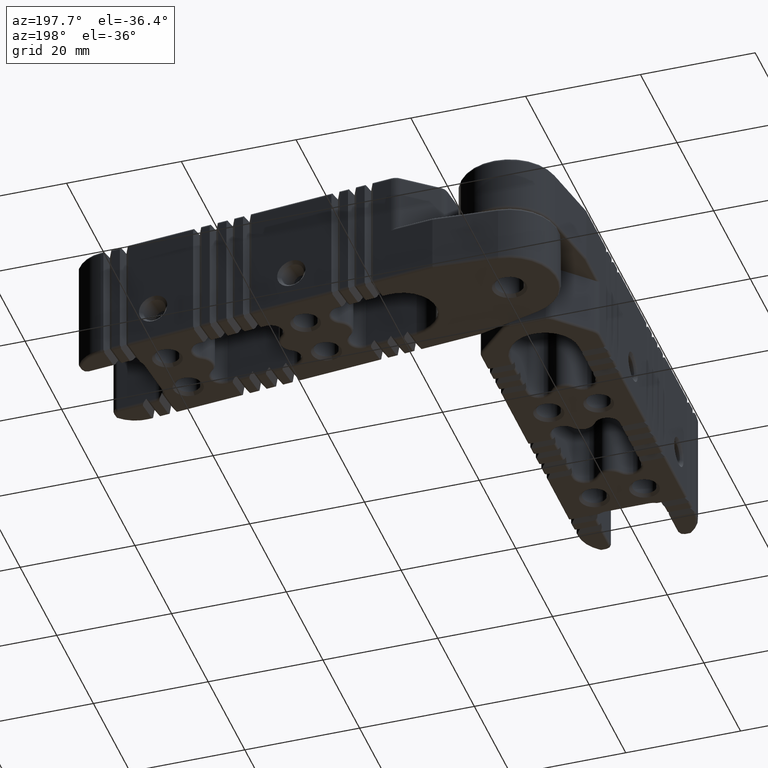
[diagram: clean part render]
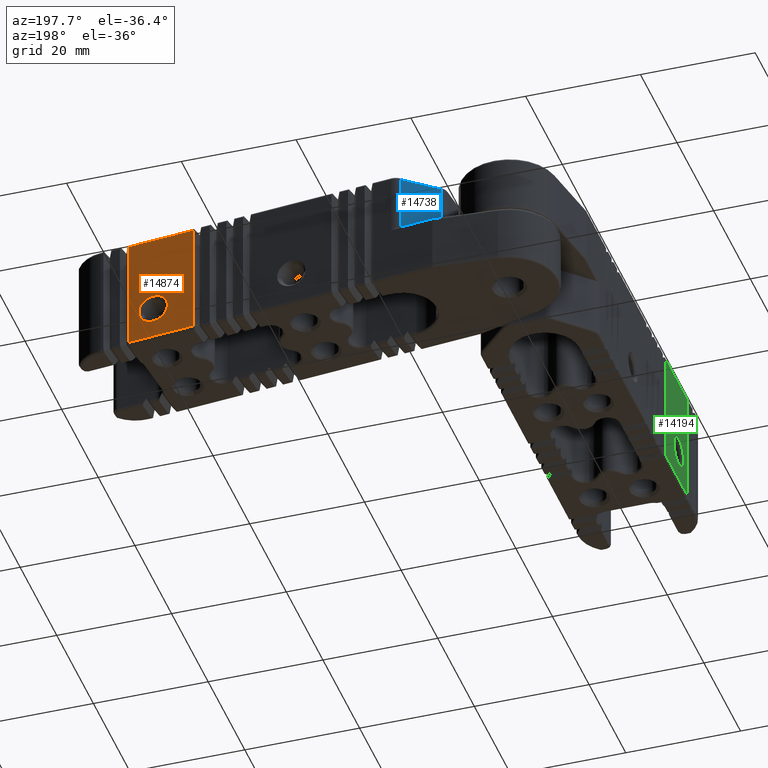
[diagram: same view with three faces highlighted in distinct colors, each labeled with its STEP entity id]
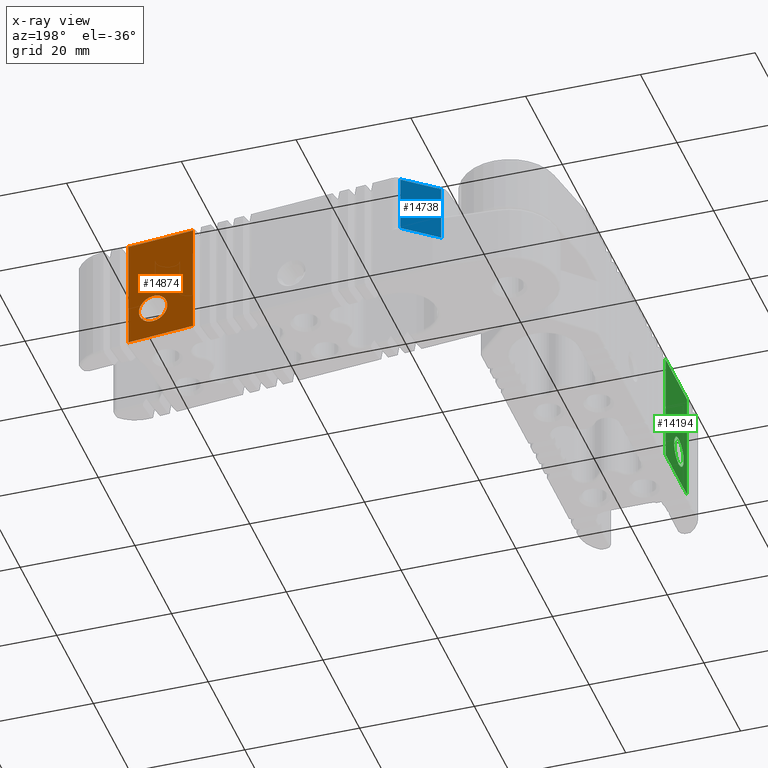
[diagram: x-ray of the same camera — body ghosted, the three highlighted faces saturated]
A machine part, auxiliary view with three faces highlighted in distinct colors.
The next image is the same camera in x-ray (body ghosted, the three faces saturated) — at least one of them is partly hidden behind the body in this view.
Their STEP definitions:

[orange] entity #14874 — the highlighted planar face has unit normal (0.099, 0.9951, 0).
#71=FACE_BOUND('',#2668,.T.);
#705=CIRCLE('',#16722,2.567);
#706=CIRCLE('',#16723,2.567);
#1819=FACE_OUTER_BOUND('',#2667,.T.);
#2667=EDGE_LOOP('',(#13638,#13639,#13640,#13641));
#2668=EDGE_LOOP('',(#13642,#13643));
#3347=LINE('',#25131,#4551);
#3597=LINE('',#26104,#4801);
#3853=LINE('',#27087,#5057);
#3854=LINE('',#27089,#5058);
#4551=VECTOR('',#19393,1000.);
#4801=VECTOR('',#20331,1000.);
#5057=VECTOR('',#21329,1000.);
#5058=VECTOR('',#21332,1000.);
#6455=VERTEX_POINT('',#25128);
#6456=VERTEX_POINT('',#25130);
#6795=VERTEX_POINT('',#26102);
#7003=VERTEX_POINT('',#27085);
#7017=VERTEX_POINT('',#27187);
#7018=VERTEX_POINT('',#27188);
#8289=EDGE_CURVE('',#6455,#6456,#3347,.T.);
#8762=EDGE_CURVE('',#6455,#6795,#3597,.T.);
#9199=EDGE_CURVE('',#7003,#6456,#3853,.T.);
#9200=EDGE_CURVE('',#7003,#6795,#3854,.T.);
#9244=EDGE_CURVE('',#7017,#7018,#705,.T.);
#9245=EDGE_CURVE('',#7018,#7017,#706,.T.);
#13638=ORIENTED_EDGE('',*,*,#9200,.F.);
#13639=ORIENTED_EDGE('',*,*,#9199,.T.);
#13640=ORIENTED_EDGE('',*,*,#8289,.F.);
#13641=ORIENTED_EDGE('',*,*,#8762,.T.);
#13642=ORIENTED_EDGE('',*,*,#9244,.F.);
#13643=ORIENTED_EDGE('',*,*,#9245,.F.);
#14064=PLANE('',#16721);
#14874=ADVANCED_FACE('',(#1819,#71),#14064,.T.);
#16721=AXIS2_PLACEMENT_3D('',#27186,#21471,#21472);
#16722=AXIS2_PLACEMENT_3D('',#27189,#21473,#21474);
#16723=AXIS2_PLACEMENT_3D('',#27190,#21475,#21476);
#19393=DIRECTION('',(1.,-2.26231481527955E-16,0.));
#20331=DIRECTION('',(0.,0.,-1.));
#21329=DIRECTION('',(0.,0.,1.));
#21332=DIRECTION('',(-1.,2.26231481527955E-16,0.));
#21471=DIRECTION('center_axis',(-2.26231481527955E-16,-1.,0.));
#21472=DIRECTION('ref_axis',(1.,-2.26231481527955E-16,0.));
#21473=DIRECTION('center_axis',(-2.26231481527955E-16,-1.,0.));
#21474=DIRECTION('ref_axis',(0.,0.,1.));
#21475=DIRECTION('center_axis',(-2.26231481527955E-16,-1.,0.));
#21476=DIRECTION('ref_axis',(0.,0.,1.));
#25128=CARTESIAN_POINT('',(-84.8300087747087,-23.2225456785213,17.3074630961874));
#25130=CARTESIAN_POINT('',(-73.0800087747087,-23.2225456785213,17.3074630961874));
#25131=CARTESIAN_POINT('',(-43.3818460680645,-23.2225456785213,17.3074630961874));
#26102=CARTESIAN_POINT('',(-84.8300087747087,-23.2225456785213,-2.39253690381256));
#26104=CARTESIAN_POINT('',(-84.8300087747087,-23.2225456785213,2.28246309618744));
#27085=CARTESIAN_POINT('',(-73.0800087747087,-23.2225456785213,-2.39253690381256));
#27087=CARTESIAN_POINT('',(-73.0800087747087,-23.2225456785213,2.28246309618744));
#27089=CARTESIAN_POINT('',(-43.3818460680645,-23.2225456785213,-2.39253690381256));
#27186=CARTESIAN_POINT('Origin',(-29.8300087747087,-23.2225456785213,7.45746309618744));
#27187=CARTESIAN_POINT('',(-80.3300087747087,-23.2225456785213,5.87446309618744));
#27188=CARTESIAN_POINT('',(-80.3300087747087,-23.2225456785207,0.740463096186799));
#27189=CARTESIAN_POINT('Origin',(-80.3300087747087,-23.2225456785213,3.30746309618744));
#27190=CARTESIAN_POINT('Origin',(-80.3300087747087,-23.2225456785213,3.30746309618744));

[blue] entity #14738 — the highlighted planar face has unit normal (0.6337, -0.7736, 0).
#1683=FACE_OUTER_BOUND('',#2530,.T.);
#2530=EDGE_LOOP('',(#12904,#12905,#12906,#12907));
#3390=LINE('',#25345,#4594);
#3768=LINE('',#26786,#4972);
#3769=LINE('',#26788,#4973);
#3770=LINE('',#26789,#4974);
#4594=VECTOR('',#19578,1000.);
#4972=VECTOR('',#20912,1000.);
#4973=VECTOR('',#20913,1000.);
#4974=VECTOR('',#20914,1000.);
#6535=VERTEX_POINT('',#25340);
#6536=VERTEX_POINT('',#25343);
#6953=VERTEX_POINT('',#26785);
#6954=VERTEX_POINT('',#26787);
#8383=EDGE_CURVE('',#6536,#6535,#3390,.T.);
#9042=EDGE_CURVE('',#6535,#6953,#3768,.T.);
#9043=EDGE_CURVE('',#6536,#6954,#3769,.T.);
#9044=EDGE_CURVE('',#6953,#6954,#3770,.T.);
#12904=ORIENTED_EDGE('',*,*,#9042,.F.);
#12905=ORIENTED_EDGE('',*,*,#8383,.F.);
#12906=ORIENTED_EDGE('',*,*,#9043,.T.);
#12907=ORIENTED_EDGE('',*,*,#9044,.F.);
#13999=PLANE('',#16498);
#14738=ADVANCED_FACE('',(#1683),#13999,.F.);
#16498=AXIS2_PLACEMENT_3D('',#26784,#20910,#20911);
#19578=DIRECTION('',(0.,0.,1.));
#20910=DIRECTION('center_axis',(-0.707106781186548,0.707106781186547,0.));
#20911=DIRECTION('ref_axis',(0.,0.,1.));
#20912=DIRECTION('',(0.707106781186547,0.707106781186548,0.));
#20913=DIRECTION('',(0.707106781186547,0.707106781186548,0.));
#20914=DIRECTION('',(0.,0.,-1.));
#25340=CARTESIAN_POINT('',(-35.8942223370818,-22.6367592408944,17.3074630961874));
#25343=CARTESIAN_POINT('',(-35.8942223370818,-22.6367592408944,7.30746309618744));
#25345=CARTESIAN_POINT('',(-35.8942223370818,-22.6367592408944,12.6324630961874));
#26784=CARTESIAN_POINT('Origin',(-36.4800087747087,-23.2225456785213,17.8074630961874));
#26785=CARTESIAN_POINT('',(-30.7157952123356,-17.4583321161482,17.3074630961874));
#26786=CARTESIAN_POINT('',(-39.0059274213866,-25.7484643251992,17.3074630961874));
#26787=CARTESIAN_POINT('',(-30.7157952123356,-17.4583321161482,7.30746309618744));
#26788=CARTESIAN_POINT('',(-30.1300087747087,-16.8725456785213,7.30746309618744));
#26789=CARTESIAN_POINT('',(-30.7157952123356,-17.4583321161482,17.8074630961874));

[green] entity #14194 — the highlighted planar face has unit normal (-1, -0, 0).
#42=FACE_BOUND('',#1959,.T.);
#288=CIRCLE('',#15302,2.567);
#289=CIRCLE('',#15303,2.567);
#1139=FACE_OUTER_BOUND('',#1958,.T.);
#1958=EDGE_LOOP('',(#9942,#9943,#9944,#9945));
#1959=EDGE_LOOP('',(#9946,#9947));
#2996=LINE('',#23005,#4200);
#2997=LINE('',#23007,#4201);
#2998=LINE('',#23009,#4202);
#2999=LINE('',#23010,#4203);
#4200=VECTOR('',#17746,1000.);
#4201=VECTOR('',#17747,1000.);
#4202=VECTOR('',#17748,1000.);
#4203=VECTOR('',#17749,1000.);
#6054=VERTEX_POINT('',#23003);
#6055=VERTEX_POINT('',#23004);
#6056=VERTEX_POINT('',#23006);
#6057=VERTEX_POINT('',#23008);
#6058=VERTEX_POINT('',#23011);
#6059=VERTEX_POINT('',#23012);
#7572=EDGE_CURVE('',#6054,#6055,#2996,.T.);
#7573=EDGE_CURVE('',#6054,#6056,#2997,.T.);
#7574=EDGE_CURVE('',#6057,#6056,#2998,.T.);
#7575=EDGE_CURVE('',#6057,#6055,#2999,.T.);
#7576=EDGE_CURVE('',#6058,#6059,#288,.T.);
#7577=EDGE_CURVE('',#6059,#6058,#289,.T.);
#9942=ORIENTED_EDGE('',*,*,#7572,.F.);
#9943=ORIENTED_EDGE('',*,*,#7573,.T.);
#9944=ORIENTED_EDGE('',*,*,#7574,.F.);
#9945=ORIENTED_EDGE('',*,*,#7575,.T.);
#9946=ORIENTED_EDGE('',*,*,#7576,.F.);
#9947=ORIENTED_EDGE('',*,*,#7577,.F.);
#13770=PLANE('',#15301);
#14194=ADVANCED_FACE('',(#1139,#42),#13770,.T.);
#15301=AXIS2_PLACEMENT_3D('',#23002,#17744,#17745);
#15302=AXIS2_PLACEMENT_3D('',#23013,#17750,#17751);
#15303=AXIS2_PLACEMENT_3D('',#23014,#17752,#17753);
#17744=DIRECTION('center_axis',(-1.,-1.36642833800019E-16,0.));
#17745=DIRECTION('ref_axis',(-1.36642833800019E-16,1.,0.));
#17746=DIRECTION('',(1.36642833800019E-16,-1.,0.));
#17747=DIRECTION('',(0.,0.,-1.));
#17748=DIRECTION('',(-1.36642833800019E-16,1.,0.));
#17749=DIRECTION('',(0.,0.,1.));
#17750=DIRECTION('center_axis',(-1.,-1.36642833800019E-16,0.));
#17751=DIRECTION('ref_axis',(0.,0.,-1.));
#17752=DIRECTION('center_axis',(-1.,-1.36642833800019E-16,0.));
#17753=DIRECTION('ref_axis',(0.,0.,-1.));
#23002=CARTESIAN_POINT('Origin',(-30.6800087747087,-22.3725456785213,7.45746309618744));
#23003=CARTESIAN_POINT('',(-30.6800087747087,-65.6225456785213,17.3074630961874));
#23004=CARTESIAN_POINT('',(-30.6800087747087,-77.3725456785213,17.3074630961874));
#23005=CARTESIAN_POINT('',(-30.6800087747087,-35.9243829718771,17.3074630961874));
#23006=CARTESIAN_POINT('',(-30.6800087747087,-65.6225456785213,-2.39253690381256));
#23007=CARTESIAN_POINT('',(-30.6800087747087,-65.6225456785213,12.6324630961874));
#23008=CARTESIAN_POINT('',(-30.6800087747087,-77.3725456785213,-2.39253690381256));
#23009=CARTESIAN_POINT('',(-30.6800087747087,-35.9243829718771,-2.39253690381256));
#23010=CARTESIAN_POINT('',(-30.6800087747087,-77.3725456785213,12.6324630961874));
#23011=CARTESIAN_POINT('',(-30.6800087747087,-72.8725456785213,0.74046309618744));
#23012=CARTESIAN_POINT('',(-30.6800087747081,-72.8725456785213,5.87446309618808));
#23013=CARTESIAN_POINT('Origin',(-30.6800087747087,-72.8725456785213,3.30746309618744));
#23014=CARTESIAN_POINT('Origin',(-30.6800087747087,-72.8725456785213,3.30746309618744));